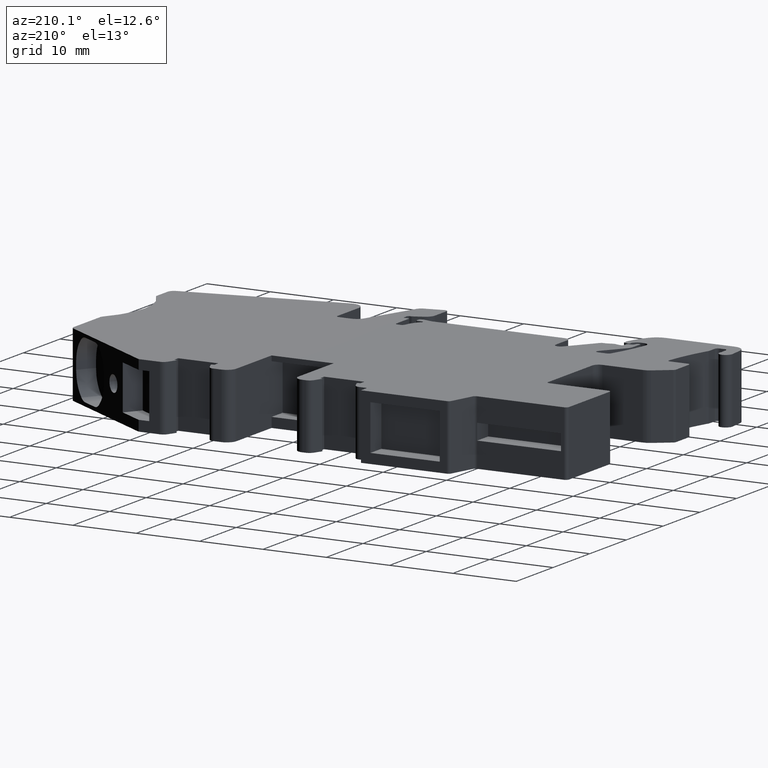
[diagram: clean part render]
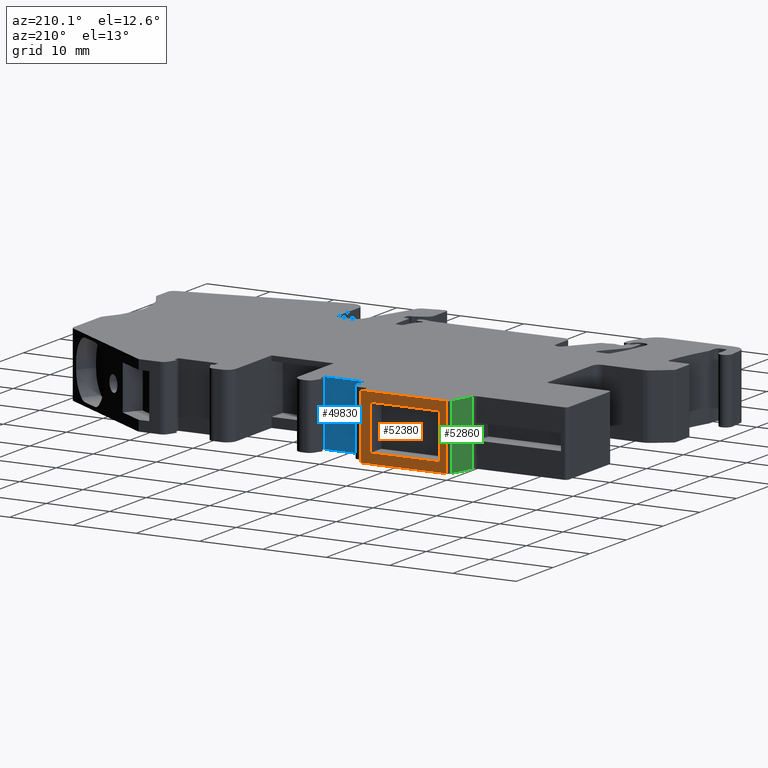
[diagram: same view with three faces highlighted in distinct colors, each labeled with its STEP entity id]
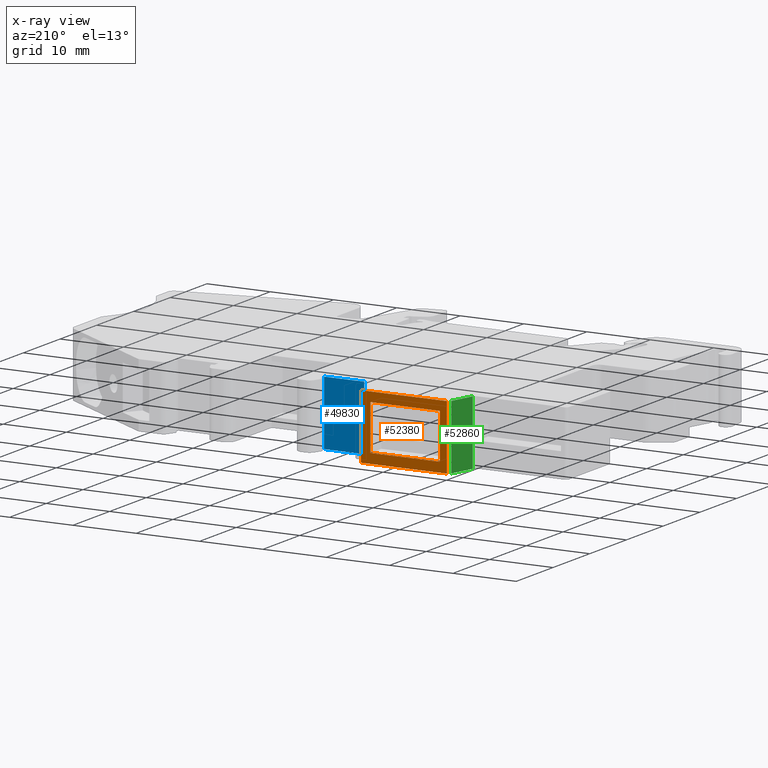
[diagram: x-ray of the same camera — body ghosted, the three highlighted faces saturated]
A machine part, auxiliary view with three faces highlighted in distinct colors.
The next image is the same camera in x-ray (body ghosted, the three faces saturated) — at least one of them is partly hidden behind the body in this view.
Their STEP definitions:

[orange] entity #52380 — the highlighted planar face has unit normal (0, 1, 0).
#5240=CARTESIAN_POINT('',(30.8974635,42.0500005,10.1));
#5250=VERTEX_POINT('',#5240);
#5280=CARTESIAN_POINT('',(7.823389,42.0500005,10.1));
#5290=DIRECTION('',(1.,0.,0.));
#5300=VECTOR('',#5290,1.);
#5310=LINE('',#5280,#5300);
#5320=CARTESIAN_POINT('',(17.3432249293718,42.0500005,10.1));
#5330=VERTEX_POINT('',#5320);
#5340=EDGE_CURVE('',#5330,#5250,#5310,.T.);
#20880=CARTESIAN_POINT('',(17.3432249293718,42.0500005,20.25));
#20890=VERTEX_POINT('',#20880);
#20920=CARTESIAN_POINT('',(7.823389,42.0500005,20.25));
#20930=DIRECTION('',(1.,0.,0.));
#20940=VECTOR('',#20930,1.);
#20950=LINE('',#20920,#20940);
#20960=CARTESIAN_POINT('',(30.8974635,42.0500005,20.25));
#20970=VERTEX_POINT('',#20960);
#20980=EDGE_CURVE('',#20890,#20970,#20950,.T.);
#51710=CARTESIAN_POINT('',(30.8974635,42.0500005,10.1));
#51720=DIRECTION('',(0.,0.,1.));
#51730=VECTOR('',#51720,1.);
#51740=LINE('',#51710,#51730);
#51750=EDGE_CURVE('',#5250,#20970,#51740,.T.);
#51880=CARTESIAN_POINT('',(17.3432249293718,42.0500005,10.1));
#51890=DIRECTION('',(-0.,1.,0.));
#51900=DIRECTION('',(1.,0.,0.));
#51910=AXIS2_PLACEMENT_3D('',#51880,#51890,#51900);
#51920=PLANE('',#51910);
#51930=ORIENTED_EDGE('',*,*,#51750,.F.);
#51940=ORIENTED_EDGE('',*,*,#20980,.T.);
#51950=CARTESIAN_POINT('',(17.3432249293718,42.0500005,10.1));
#51960=DIRECTION('',(0.,0.,1.));
#51970=VECTOR('',#51960,1.);
#51980=LINE('',#51950,#51970);
#51990=EDGE_CURVE('',#5330,#20890,#51980,.T.);
#52000=ORIENTED_EDGE('',*,*,#51990,.T.);
#52010=ORIENTED_EDGE('',*,*,#5340,.F.);
#52020=EDGE_LOOP('',(#52010,#52000,#51940,#51930));
#52030=FACE_OUTER_BOUND('',#52020,.T.);
#52040=CARTESIAN_POINT('',(29.4128528129999,42.0500005,10.1));
#52050=DIRECTION('',(0.,0.,-1.));
#52060=VECTOR('',#52050,1.);
#52070=LINE('',#52040,#52060);
#52080=CARTESIAN_POINT('',(29.4128528129999,42.0500005,18.7500000299902)
);
#52090=VERTEX_POINT('',#52080);
#52100=CARTESIAN_POINT('',(29.4128528129999,42.0500005,11.6500000299902)
);
#52110=VERTEX_POINT('',#52100);
#52120=EDGE_CURVE('',#52090,#52110,#52070,.T.);
#52130=ORIENTED_EDGE('',*,*,#52120,.F.);
#52140=CARTESIAN_POINT('',(7.823389,42.0500005,11.6500000299902));
#52150=DIRECTION('',(-1.,0.,-0.));
#52160=VECTOR('',#52150,1.);
#52170=LINE('',#52140,#52160);
#52180=CARTESIAN_POINT('',(18.4627490399999,42.0500005,11.6500000299902)
);
#52190=VERTEX_POINT('',#52180);
#52200=EDGE_CURVE('',#52110,#52190,#52170,.T.);
#52210=ORIENTED_EDGE('',*,*,#52200,.F.);
#52220=CARTESIAN_POINT('',(18.4627490399999,42.0500005,10.1));
#52230=DIRECTION('',(0.,-0.,1.));
#52240=VECTOR('',#52230,1.);
#52250=LINE('',#52220,#52240);
#52260=CARTESIAN_POINT('',(18.4627490399999,42.0500005,18.7500000299902)
);
#52270=VERTEX_POINT('',#52260);
#52280=EDGE_CURVE('',#52190,#52270,#52250,.T.);
#52290=ORIENTED_EDGE('',*,*,#52280,.F.);
#52300=CARTESIAN_POINT('',(7.823389,42.0500005,18.7500000299902));
#52310=DIRECTION('',(1.,0.,-0.));
#52320=VECTOR('',#52310,1.);
#52330=LINE('',#52300,#52320);
#52340=EDGE_CURVE('',#52270,#52090,#52330,.T.);
#52350=ORIENTED_EDGE('',*,*,#52340,.F.);
#52360=EDGE_LOOP('',(#52350,#52290,#52210,#52130));
#52370=FACE_BOUND('',#52360,.T.);
#52380=ADVANCED_FACE('',(#52030,#52370),#51920,.T.);

[blue] entity #49830 — the highlighted planar face has unit normal (0, 1, 0).
#4450=CARTESIAN_POINT('',(39.5099635,37.2112545,10.1));
#4460=VERTEX_POINT('',#4450);
#4490=CARTESIAN_POINT('',(7.823389,37.2112545,10.1));
#4500=DIRECTION('',(1.,0.,0.));
#4510=VECTOR('',#4500,1.);
#4520=LINE('',#4490,#4510);
#4530=CARTESIAN_POINT('',(33.1849635,37.2112545,10.1));
#4540=VERTEX_POINT('',#4530);
#4550=EDGE_CURVE('',#4540,#4460,#4520,.T.);
#21670=CARTESIAN_POINT('',(33.1849635,37.2112545,20.25));
#21680=VERTEX_POINT('',#21670);
#21710=CARTESIAN_POINT('',(7.823389,37.2112545,20.25));
#21720=DIRECTION('',(1.,0.,0.));
#21730=VECTOR('',#21720,1.);
#21740=LINE('',#21710,#21730);
#21750=CARTESIAN_POINT('',(39.5099635,37.2112545,20.25));
#21760=VERTEX_POINT('',#21750);
#21770=EDGE_CURVE('',#21680,#21760,#21740,.T.);
#49500=CARTESIAN_POINT('',(39.5099635,37.2112545,10.1));
#49510=DIRECTION('',(0.,0.,1.));
#49520=VECTOR('',#49510,1.);
#49530=LINE('',#49500,#49520);
#49540=EDGE_CURVE('',#4460,#21760,#49530,.T.);
#49670=CARTESIAN_POINT('',(33.1849635,37.2112545,10.1));
#49680=DIRECTION('',(-0.,1.,0.));
#49690=DIRECTION('',(1.,0.,0.));
#49700=AXIS2_PLACEMENT_3D('',#49670,#49680,#49690);
#49710=PLANE('',#49700);
#49720=ORIENTED_EDGE('',*,*,#49540,.F.);
#49730=ORIENTED_EDGE('',*,*,#21770,.T.);
#49740=CARTESIAN_POINT('',(33.1849635,37.2112545,10.1));
#49750=DIRECTION('',(0.,0.,1.));
#49760=VECTOR('',#49750,1.);
#49770=LINE('',#49740,#49760);
#49780=EDGE_CURVE('',#4540,#21680,#49770,.T.);
#49790=ORIENTED_EDGE('',*,*,#49780,.T.);
#49800=ORIENTED_EDGE('',*,*,#4550,.F.);
#49810=EDGE_LOOP('',(#49800,#49790,#49730,#49720));
#49820=FACE_OUTER_BOUND('',#49810,.T.);
#49830=ADVANCED_FACE('',(#49820),#49710,.T.);

[green] entity #52860 — the highlighted planar face has unit normal (-0.9638, 0.2666, 0).
#5410=CARTESIAN_POINT('',(16.8613193622709,41.6832935020564,10.1));
#5420=VERTEX_POINT('',#5410);
#5450=CARTESIAN_POINT('',(7.74270535676893,8.71599,10.1));
#5460=DIRECTION('',(0.266586004112892,0.963811134201676,0.));
#5470=VECTOR('',#5460,1.);
#5480=LINE('',#5450,#5470);
#5490=CARTESIAN_POINT('',(15.7641787760269,37.7167074979436,10.1));
#5500=VERTEX_POINT('',#5490);
#5510=EDGE_CURVE('',#5500,#5420,#5480,.T.);
#20710=CARTESIAN_POINT('',(15.7641787760269,37.7167074979436,20.25));
#20720=VERTEX_POINT('',#20710);
#20750=CARTESIAN_POINT('',(7.74270535676893,8.71599,20.25));
#20760=DIRECTION('',(0.266586004112892,0.963811134201676,0.));
#20770=VECTOR('',#20760,1.);
#20780=LINE('',#20750,#20770);
#20790=CARTESIAN_POINT('',(16.8613193622709,41.6832935020564,20.25));
#20800=VERTEX_POINT('',#20790);
#20810=EDGE_CURVE('',#20720,#20800,#20780,.T.);
#52530=CARTESIAN_POINT('',(16.8613193622709,41.6832935020564,10.1));
#52540=DIRECTION('',(0.,0.,1.));
#52550=VECTOR('',#52540,1.);
#52560=LINE('',#52530,#52550);
#52570=EDGE_CURVE('',#5420,#20800,#52560,.T.);
#52700=CARTESIAN_POINT('',(15.7641787760269,37.7167074979436,10.1));
#52710=DIRECTION('',(-0.963811134201676,0.266586004112892,0.));
#52720=DIRECTION('',(0.266586004112892,0.963811134201676,0.));
#52730=AXIS2_PLACEMENT_3D('',#52700,#52710,#52720);
#52740=PLANE('',#52730);
#52750=ORIENTED_EDGE('',*,*,#52570,.F.);
#52760=ORIENTED_EDGE('',*,*,#20810,.T.);
#52770=CARTESIAN_POINT('',(15.7641787760269,37.7167074979436,10.1));
#52780=DIRECTION('',(0.,0.,1.));
#52790=VECTOR('',#52780,1.);
#52800=LINE('',#52770,#52790);
#52810=EDGE_CURVE('',#5500,#20720,#52800,.T.);
#52820=ORIENTED_EDGE('',*,*,#52810,.T.);
#52830=ORIENTED_EDGE('',*,*,#5510,.F.);
#52840=EDGE_LOOP('',(#52830,#52820,#52760,#52750));
#52850=FACE_OUTER_BOUND('',#52840,.T.);
#52860=ADVANCED_FACE('',(#52850),#52740,.T.);